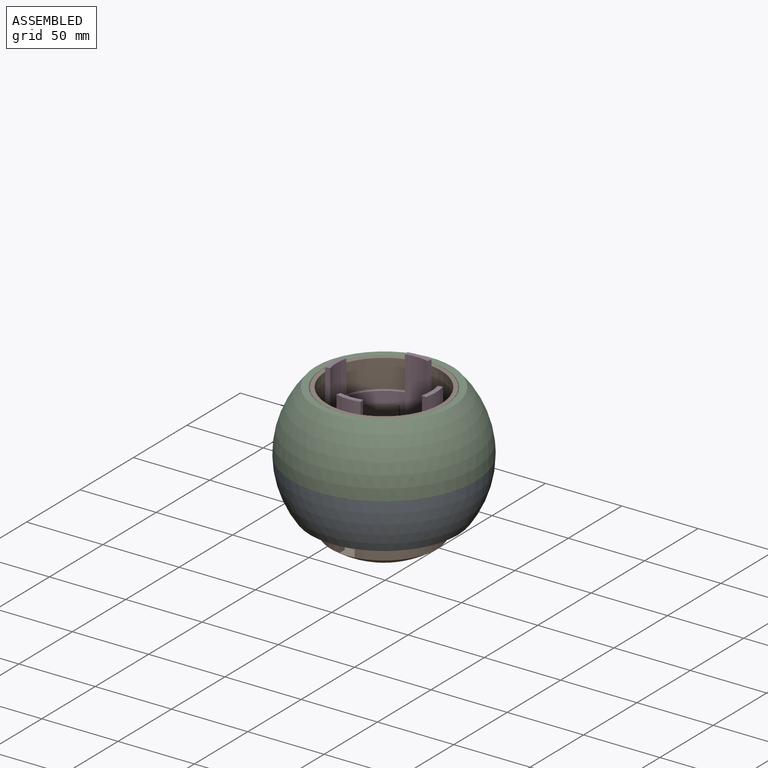
[diagram: assembled view]
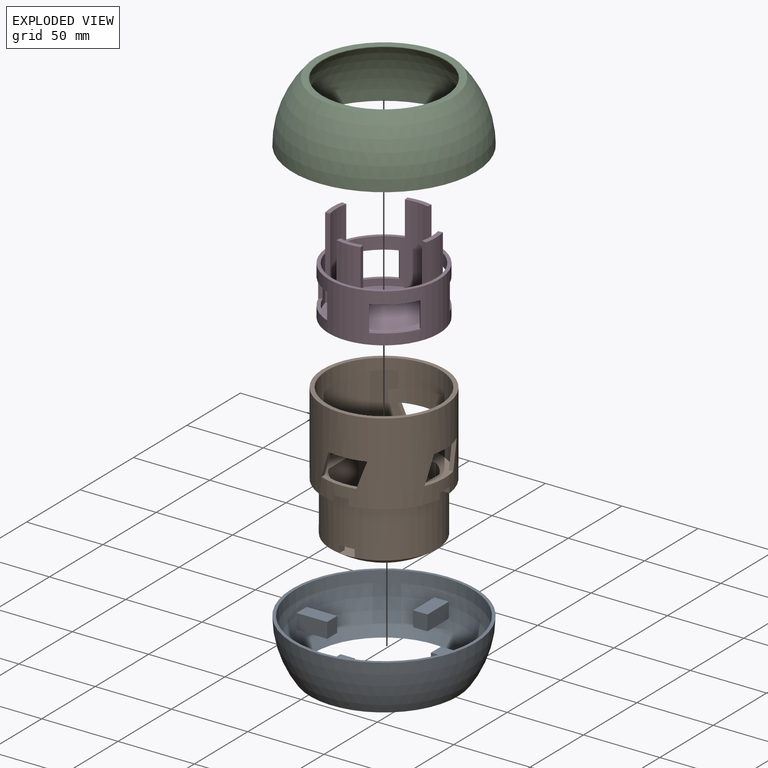
[diagram: exploded view]
GUIDED TOUR — MATED ASSEMBLY (Onshape document e56624c7824e60124f86bd72, AutoMate assembly e56624c7824e60124f86bd72_9de92156aa8731d8bdb36ea4_46a360033ff3293bf95f76d8_default)

This assembly has 4 components, labeled P0..P3 below (a component is one placed occurrence of a part; the same part can appear more than once), held together by 4 mates. A mate is a constraint between two components; its type names the relative motion it leaves free:
  CYLINDRICAL — leaves both rotation about and translation along the listed axis free,
  PARALLEL — keeps the two listed directions parallel,
  REVOLUTE — leaves rotation about the listed axis free (a hinge).
Axis/direction vectors are unit vectors and 'through' points are millimeter coordinates, both in the assembly's world frame.

MATES
  1. CYLINDRICAL "원통형 2": P2 <-> P0, axis (0.000, 0.000, -1.000) through (-66.40, 79.53, 41.15) mm
  2. CYLINDRICAL "원통형 1": P1 <-> P0, axis (0.000, 0.000, 1.000) through (-66.40, 79.53, 12.66) mm
  3. PARALLEL "평행 1": P0 <-> P1, direction (0.000, 0.000, 1.000) through (-66.40, 45.53, 30.05) mm
  4. REVOLUTE "축회전하기 1": P3 <-> P1, axis (0.000, 0.000, -1.000) through (-66.40, 79.53, 30.86) mm

ASSEMBLY ORDER
  1. P1 — the base component [order heuristic]
  2. P0 [order verified]
  3. P3 — core [order heuristic]
  4. P2 — core [order heuristic]
Order-tag legend:
  [order verified] — this step's position reverses a verified removal order: the component was checked to insert without passing through the ones already placed.
  [order heuristic] — the first 3 components form the assembly's core: parts whose collision-free extraction could not be verified, listed in mate-graph order.

Of the 4 components, 1 carries the full construction recipe — the FeatureScript program that regenerates the part's solid from scratch; the rest are supplied as boundary geometry only.
Each toured component is shown spotlighted twice — in the assembled view, then in the exploded view, where a leader line traces a displaced component back to its assembled socket (saturated green if recipe-attached, orange if geometry-only; every other component desaturated gray) — followed by its recipe or geometry summary and the mates that hold it.
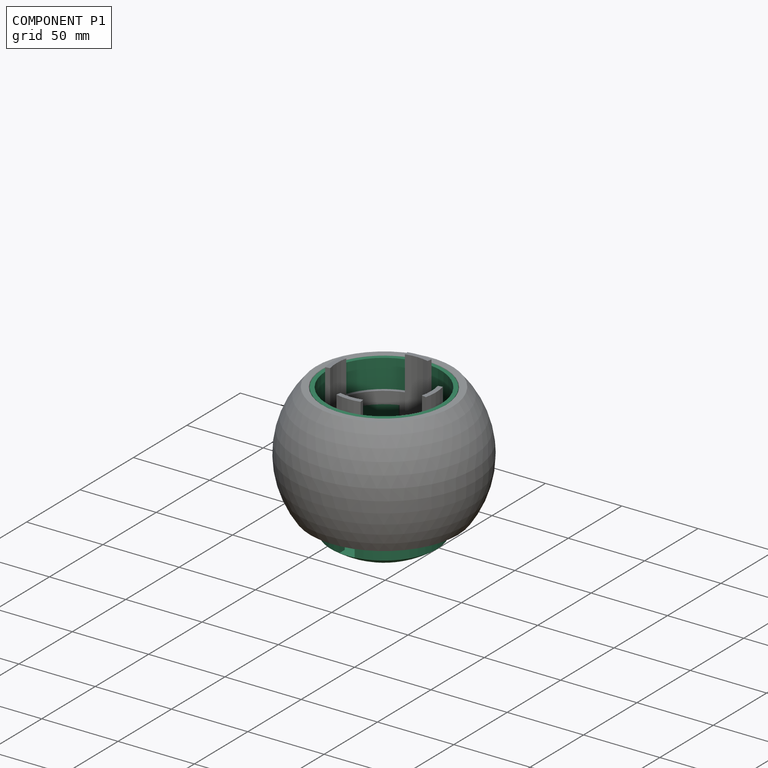
[diagram: component P1 — assembled]
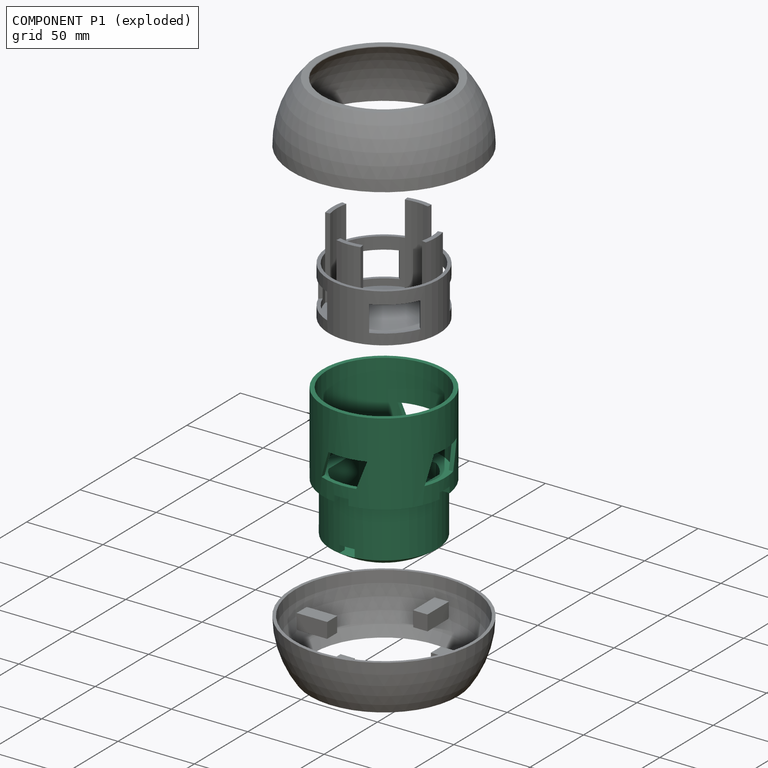
[diagram: component P1 — exploded]
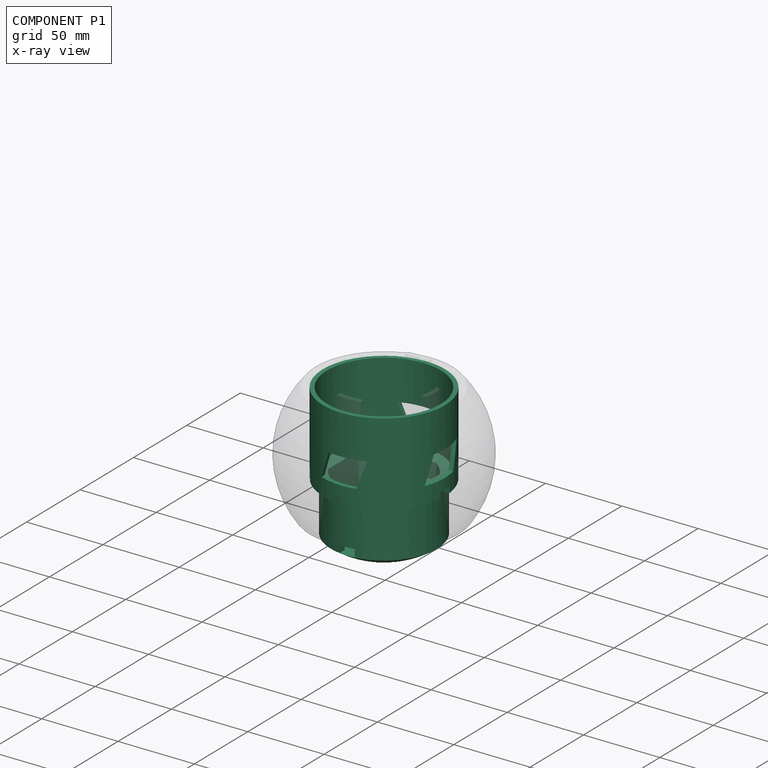
[diagram: component P1 — x-ray view]
COMPONENT P1 — recipe-attached (CADFS 00549652, mesh-verified: the recipe's output STEP matches this component's geometry to below the mesh-comparison resolution (tessellation chordal tolerance ~0.225 mm)).
Held by: CYLINDRICAL mate "원통형 1" to P0; PARALLEL mate "평행 1" to P0; REVOLUTE mate "축회전하기 1" to P3.
Construction recipe (FeatureScript — the CAD program that rebuilds this solid; sketch coordinates are in the units given by the * unit suffixes, e.g. mm):

FeatureScript 1511;
import(path : "onshape/std/geometry.fs", version : "1511.0");
import(path : "onshape/std/common.fs", version : "1511.0");
const mm = millimeter;
const VERTEX = EntityType.VERTEX;
const EDGE = EntityType.EDGE;
const FACE = EntityType.FACE;
const BODY = EntityType.BODY;
function v(x, y){return vector(x, y);}
function OD(order){return orderDisambiguation(order);}
function OSD(set){return originalSetDisambiguation(set);}
function TD(topology){return topologyDisambiguation(topology);}
function TDD(query){return trueDependencyDisambiguation(query);}
function sQuery(a, b, c) {return sketchEntityQuery(a, b, c);}

annotation { "Feature Type Name" : "Feature", "Feature Type Description" : "" }
export const myFeature = defineFeature(function(context is Context, id is Id, definition is map)
    precondition{}
    {
        {
            var Q0;
            Q0=qCreatedBy(makeId("Top.planeOp"),FACE);
            var sketch = newSketch(context, id + "F0", { "sketchPlane" : qUnion([Q0])});
            skCircle(sketch, "E0", {"center": v(0, 0) * mm, "radius": 35 * mm});
            skCircle(sketch, "E1", {"center": v(0, 0) * mm, "radius": 30 * mm});
            skSolve(sketch);
        }
        {
            var Q0;
            Q0=makeQuery(id+"F0.imprint","IMPRINT",FACE,{"disambiguationData":[TD([[makeQuery(id+"F0.imprint","IMPRINT",EDGE,{"derivedFrom":sQuery(id+"F0.wireOp",EDGE,"E0")}),1.0]])]});
            extrude(context, id + "F1", {"entities" : qUnion([Q0]), "oppositeDirection" : true, "depth" : 10 * mm, "offsetDistance" : 25 * mm});
        }
        {
            var Q0;
            Q0=qCreatedBy(makeId("Top.planeOp"),FACE);
            var sketch = newSketch(context, id + "F2", { "sketchPlane" : qUnion([Q0])});
            skLineSegment(sketch, "E2.bottom", {"start": v(4.67, 54) * mm, "end": v(-4.68, 54) * mm});
            skLineSegment(sketch, "E2.top", {"start": v(4.68, 34) * mm, "end": v(-4.67, 34) * mm});
            skLineSegment(sketch, "E2.left", {"start": v(4.68, 54) * mm, "end": v(4.68, 34) * mm});
            skLineSegment(sketch, "E2.right", {"start": v(-4.67, 54) * mm, "end": v(-4.67, 34) * mm});
            skPoint(sketch, "E2.middle", {"position": v(0, 44) * mm});
            skSolve(sketch);
        }
        {
            var Q0;
            Q0=qSketchRegion(id+"F2",true);
            extrude(context, id + "F3", {"entities" : qUnion([Q0]), "operationType" : NewBodyOperationType.ADD, "oppositeDirection" : true, "depth" : 10 * mm, "offsetDistance" : 25 * mm});
        }
        {
            var Q0;
            Q0=qCreatedBy(makeId("Right.planeOp"),FACE);
            var sketch = newSketch(context, id + "F4", { "sketchPlane" : qUnion([Q0])});
            skLineSegment(sketch, "E3", {"start": v(0, 0) * mm, "end": v(0, -40) * mm});
            skSolve(sketch);
        }
        {
            var Q0;
            Q0=makeQuery(id+"F1.opExtrude","CAP_FACE",FACE,{"disambiguationData":[OSD([sQuery(id+"F0.wireOp",EDGE,"E0"),sQuery(id+"F0.wireOp",EDGE,"E1")])],"isStart":false});
            var sketch = newSketch(context, id + "F5", { "sketchPlane" : qUnion([Q0])});
            skCircle(sketch, "E4", {"center": v(0, 0) * mm, "radius": 30 * mm});
            skCircle(sketch, "E5", {"center": v(0, 0) * mm, "radius": 35 * mm});
            skSolve(sketch);
        }
        {
            var Q0;
            Q0=qSketchRegion(id+"F5",true);
            extrude(context, id + "F6", {"entities" : qUnion([Q0]), "depth" : 26.4 * mm, "offsetDistance" : 25 * mm});
        }
        {
            var Q0;
            Q0=qCreatedBy(makeId("Right.planeOp"),FACE);
            var sketch = newSketch(context, id + "F7", { "sketchPlane" : qUnion([Q0])});
            skLineSegment(sketch, "E6", {"start": v(0, 43.23) * mm, "end": v(0, 10.88) * mm});
            skSolve(sketch);
        }
        {
            var Q0;
            Q0=makeQuery(id+"F1.opExtrude","SWEPT_BODY",BODY,{"disambiguationData":[OSD([sQuery(id+"F0.wireOp",EDGE,"E0"),sQuery(id+"F0.wireOp",EDGE,"E1")])]});
            var Q1;
            Q1=sQuery(id+"F7.wireOp",EDGE,"E6");
            circularPattern(context, id + "F8", {"entities" : qUnion([Q0]), "axis" : qUnion([Q1]), "angle" : 360 * degree, "instanceCount" : 4, "equalSpace" : true});
        }
        {
            var Q0;
            Q0=qCreatedBy(makeId("Right.planeOp"),FACE);
            var sketch = newSketch(context, id + "F9", { "sketchPlane" : qUnion([Q0])});
            skLineSegment(sketch, "E7", {"start": v(0, -36.4) * mm, "end": v(0, -48.07) * mm});
            skLineSegment(sketch, "E8", {"start": v(0, -36.4) * mm, "end": v(-35, -36.4) * mm});
            skArc(sketch, "E9", {"start": v(-35, -36.4) * mm, "mid": v(-18.42, -44.99) * mm, "end": v(0, -48.07) * mm});
            skSolve(sketch);
        }
        {
            var Q0;
            Q0=qSketchRegion(id+"F9",true);
            var Q1;
            Q1=sQuery(id+"F7.wireOp",EDGE,"E6");
            revolve(context, id + "F10", {"operationType" : NewBodyOperationType.ADD, "entities" : qUnion([Q0]), "axis" : qUnion([Q1]), "revolveType" : RevolveType.FULL});
        }
        {
            var Q0;
            Q0=qCreatedBy(makeId("Top.planeOp"),FACE);
            var sketch = newSketch(context, id + "F11", { "sketchPlane" : qUnion([Q0])});
            skLineSegment(sketch, "E10.bottom", {"start": v(16.5, 25.05) * mm, "end": v(-16.5, 25.05) * mm});
            skLineSegment(sketch, "E10.top", {"start": v(16.5, 30) * mm, "end": v(-16.5, 30) * mm});
            skLineSegment(sketch, "E10.left", {"start": v(16.5, 25.05) * mm, "end": v(16.5, 30) * mm});
            skLineSegment(sketch, "E10.right", {"start": v(-16.5, 25.05) * mm, "end": v(-16.5, 30) * mm});
            skPoint(sketch, "E10.middle", {"position": v(0, 27.53) * mm});
            skSolve(sketch);
        }
        {
            var Q0;
            Q0=makeQuery(id+"F1.opExtrude","SWEPT_BODY",BODY,{"disambiguationData":[OSD([sQuery(id+"F0.wireOp",EDGE,"E0"),sQuery(id+"F0.wireOp",EDGE,"E1")])]});
            var Q1;
            Q1=makeQuery(id+"F6.opExtrude","SWEPT_BODY",BODY,{"disambiguationData":[OSD([sQuery(id+"F5.wireOp",EDGE,"E4"),sQuery(id+"F5.wireOp",EDGE,"E5")])]});
            var Q2;
            Q2=makeQuery(id+"F8.opPattern","COPY",BODY,{"derivedFrom":makeQuery(id+"F1.opExtrude","SWEPT_BODY",BODY,{"disambiguationData":[OSD([sQuery(id+"F0.wireOp",EDGE,"E0"),sQuery(id+"F0.wireOp",EDGE,"E1")])]}),"instanceName":"2"});
            var Q3;
            Q3=makeQuery(id+"F8.opPattern","COPY",BODY,{"derivedFrom":makeQuery(id+"F1.opExtrude","SWEPT_BODY",BODY,{"disambiguationData":[OSD([sQuery(id+"F0.wireOp",EDGE,"E0"),sQuery(id+"F0.wireOp",EDGE,"E1")])]}),"instanceName":"3"});
            var Q4;
            Q4=makeQuery(id+"F40aK8SqE4txYRV_3.opPattern","COPY",BODY,{"derivedFrom":makeQuery(id+"FKwpcLcn6bH6iQZ_2.opRevolve","SWEPT_BODY",BODY,{"disambiguationData":[OSD([sQuery(id+"FD4HdzIvPUUwVay_2.wireOp",EDGE,"a1goFWV3-hmGV-yWYP-BMxk-jAgMXw5Fhpe8"),sQuery(id+"FD4HdzIvPUUwVay_2.wireOp",EDGE,"Fw7PGfqN-QWwp-sSqB-PI52-uVMqbdzyiW2G"),sQuery(id+"FD4HdzIvPUUwVay_2.wireOp",EDGE,"nihQI9GH-8jKx-viQP-mQeq-4tLKAg00kZ77"),sQuery(id+"FD4HdzIvPUUwVay_2.wireOp",EDGE,"Pyl0iUsN-Orhq-JqrC-4vEJ-9OXzgTH1srMD")])]}),"instanceName":"1"});
            booleanBodies(context, id + "F12", {"operationType" : BooleanOperationType.UNION, "tools" : qUnion([Q0, Q1, Q2, Q3, Q4])});
        }
        {
            var Q0;
            Q0=makeQuery(id+"F1.opExtrude","SWEPT_BODY",BODY,{"disambiguationData":[OSD([sQuery(id+"F0.wireOp",EDGE,"E0"),sQuery(id+"F0.wireOp",EDGE,"E1")])]});
            var Q1;
            Q1=makeQuery(id+"F8.opPattern","COPY",BODY,{"derivedFrom":makeQuery(id+"F1.opExtrude","SWEPT_BODY",BODY,{"disambiguationData":[OSD([sQuery(id+"F0.wireOp",EDGE,"E0"),sQuery(id+"F0.wireOp",EDGE,"E1")])]}),"instanceName":"1"});
            var Q2;
            Q2=makeQuery(id+"FKwpcLcn6bH6iQZ_2.opRevolve","SWEPT_BODY",BODY,{"disambiguationData":[OSD([sQuery(id+"FD4HdzIvPUUwVay_2.wireOp",EDGE,"a1goFWV3-hmGV-yWYP-BMxk-jAgMXw5Fhpe8"),sQuery(id+"FD4HdzIvPUUwVay_2.wireOp",EDGE,"Fw7PGfqN-QWwp-sSqB-PI52-uVMqbdzyiW2G"),sQuery(id+"FD4HdzIvPUUwVay_2.wireOp",EDGE,"nihQI9GH-8jKx-viQP-mQeq-4tLKAg00kZ77"),sQuery(id+"FD4HdzIvPUUwVay_2.wireOp",EDGE,"Pyl0iUsN-Orhq-JqrC-4vEJ-9OXzgTH1srMD")])]});
            var Q3;
            Q3=makeQuery(id+"F40aK8SqE4txYRV_3.opPattern","COPY",BODY,{"derivedFrom":makeQuery(id+"FKwpcLcn6bH6iQZ_2.opRevolve","SWEPT_BODY",BODY,{"disambiguationData":[OSD([sQuery(id+"FD4HdzIvPUUwVay_2.wireOp",EDGE,"a1goFWV3-hmGV-yWYP-BMxk-jAgMXw5Fhpe8"),sQuery(id+"FD4HdzIvPUUwVay_2.wireOp",EDGE,"Fw7PGfqN-QWwp-sSqB-PI52-uVMqbdzyiW2G"),sQuery(id+"FD4HdzIvPUUwVay_2.wireOp",EDGE,"nihQI9GH-8jKx-viQP-mQeq-4tLKAg00kZ77"),sQuery(id+"FD4HdzIvPUUwVay_2.wireOp",EDGE,"Pyl0iUsN-Orhq-JqrC-4vEJ-9OXzgTH1srMD")])]}),"instanceName":"2"});
            var Q4;
            Q4=makeQuery(id+"F40aK8SqE4txYRV_3.opPattern","COPY",BODY,{"derivedFrom":makeQuery(id+"FKwpcLcn6bH6iQZ_2.opRevolve","SWEPT_BODY",BODY,{"disambiguationData":[OSD([sQuery(id+"FD4HdzIvPUUwVay_2.wireOp",EDGE,"a1goFWV3-hmGV-yWYP-BMxk-jAgMXw5Fhpe8"),sQuery(id+"FD4HdzIvPUUwVay_2.wireOp",EDGE,"Fw7PGfqN-QWwp-sSqB-PI52-uVMqbdzyiW2G"),sQuery(id+"FD4HdzIvPUUwVay_2.wireOp",EDGE,"nihQI9GH-8jKx-viQP-mQeq-4tLKAg00kZ77"),sQuery(id+"FD4HdzIvPUUwVay_2.wireOp",EDGE,"Pyl0iUsN-Orhq-JqrC-4vEJ-9OXzgTH1srMD")])]}),"instanceName":"3"});
            var Q5;
            Q5=makeQuery(id+"FgH07LaCN1YdpZV_3.opExtrude","SWEPT_BODY",BODY,{"disambiguationData":[OSD([sQuery(id+"FR34k6RjlDwe5vP_3.wireOp",EDGE,"LmRDcWpp-awj7-NGUQ-v67H-xGxEU0ThPCFp"),sQuery(id+"FR34k6RjlDwe5vP_3.wireOp",EDGE,"yXPaf9AL-SZNH-Mc4A-USQs-dOwJlW72xKXk"),sQuery(id+"FR34k6RjlDwe5vP_3.wireOp",EDGE,"sUruhic9-czyD-tmxL-6hvL-q4A46Xcr3Ddl"),sQuery(id+"FR34k6RjlDwe5vP_3.wireOp",EDGE,"kMsjgBrX-0vqh-hQ1Y-Rj0W-wmr9ZrnzLnDL")])]});
            var Q6;
            Q6=makeQuery(id+"FhvvMPg10EEFssR_4.opPattern","COPY",BODY,{"derivedFrom":makeQuery(id+"FgH07LaCN1YdpZV_3.opExtrude","SWEPT_BODY",BODY,{"disambiguationData":[OSD([sQuery(id+"FR34k6RjlDwe5vP_3.wireOp",EDGE,"LmRDcWpp-awj7-NGUQ-v67H-xGxEU0ThPCFp"),sQuery(id+"FR34k6RjlDwe5vP_3.wireOp",EDGE,"yXPaf9AL-SZNH-Mc4A-USQs-dOwJlW72xKXk"),sQuery(id+"FR34k6RjlDwe5vP_3.wireOp",EDGE,"sUruhic9-czyD-tmxL-6hvL-q4A46Xcr3Ddl"),sQuery(id+"FR34k6RjlDwe5vP_3.wireOp",EDGE,"kMsjgBrX-0vqh-hQ1Y-Rj0W-wmr9ZrnzLnDL")])]}),"instanceName":"1"});
            var Q7;
            Q7=makeQuery(id+"F8pSuF8Lx7vEzgG_4.opExtrude","SWEPT_BODY",BODY,{"disambiguationData":[OSD([sQuery(id+"F11.wireOp",EDGE,"E10.bottom"),sQuery(id+"F11.wireOp",EDGE,"E10.top"),sQuery(id+"F11.wireOp",EDGE,"E10.left"),sQuery(id+"F11.wireOp",EDGE,"E10.right")])]});
            var Q8;
            Q8=makeQuery(id+"FjD0aHrHDqX2kuE_5.opExtrude","SWEPT_BODY",BODY,{"disambiguationData":[OSD([sQuery(id+"FjwMsoveauJ2MpE_5.wireOp",EDGE,"X3daKeJd-6pMJ-jMlG-joWg-jZjprT1OWdNl.bottom"),sQuery(id+"FjwMsoveauJ2MpE_5.wireOp",EDGE,"X3daKeJd-6pMJ-jMlG-joWg-jZjprT1OWdNl.top"),sQuery(id+"FjwMsoveauJ2MpE_5.wireOp",EDGE,"X3daKeJd-6pMJ-jMlG-joWg-jZjprT1OWdNl.left"),sQuery(id+"FjwMsoveauJ2MpE_5.wireOp",EDGE,"X3daKeJd-6pMJ-jMlG-joWg-jZjprT1OWdNl.right")])]});
            var Q9;
            Q9=makeQuery(id+"FjD0aHrHDqX2kuE_5.opExtrude","SWEPT_BODY",BODY,{"disambiguationData":[OSD([sQuery(id+"FjwMsoveauJ2MpE_5.wireOp",EDGE,"aEOO42Y5-tFNn-AOk7-4746-zKCDvE4CHbXH.bottom"),sQuery(id+"FjwMsoveauJ2MpE_5.wireOp",EDGE,"aEOO42Y5-tFNn-AOk7-4746-zKCDvE4CHbXH.top"),sQuery(id+"FjwMsoveauJ2MpE_5.wireOp",EDGE,"aEOO42Y5-tFNn-AOk7-4746-zKCDvE4CHbXH.left"),sQuery(id+"FjwMsoveauJ2MpE_5.wireOp",EDGE,"aEOO42Y5-tFNn-AOk7-4746-zKCDvE4CHbXH.right"),sQuery(id+"FjwMsoveauJ2MpE_5.wireOp",EDGE,"ugEVnK5k-7QH2-G8G2-oESj-ZDwBd6VaRQGP.top"),sQuery(id+"FjwMsoveauJ2MpE_5.wireOp",EDGE,"ugEVnK5k-7QH2-G8G2-oESj-ZDwBd6VaRQGP.left"),sQuery(id+"FjwMsoveauJ2MpE_5.wireOp",EDGE,"ugEVnK5k-7QH2-G8G2-oESj-ZDwBd6VaRQGP.right")])]});
            booleanBodies(context, id + "F13", {"operationType" : BooleanOperationType.UNION, "tools" : qUnion([Q0, Q1, Q2, Q3, Q4, Q5, Q6, Q7, Q8, Q9])});
        }
        {
            var Q0;
            Q0=qSketchRegion(id+"F11",true);
            extrude(context, id + "F14", {"entities" : qUnion([Q0]), "operationType" : NewBodyOperationType.ADD, "oppositeDirection" : true, "depth" : 37 * mm, "offsetDistance" : 25 * mm});
        }
        {
            var Q0;
            Q0=makeQuery(id+"F14.opExtrude","SWEPT_FACE",FACE,{"disambiguationData":[OSD([sQuery(id+"F11.wireOp",EDGE,"E10.bottom")])]});
            var sketch = newSketch(context, id + "F15", { "sketchPlane" : qUnion([Q0])});
            skLineSegment(sketch, "E11.bottom", {"start": v(-16.5, -36.4) * mm, "end": v(16.5, -36.4) * mm});
            skLineSegment(sketch, "E11.top", {"start": v(-16.5, -26.4) * mm, "end": v(16.5, -26.4) * mm});
            skLineSegment(sketch, "E11.left", {"start": v(-16.5, -36.4) * mm, "end": v(-16.5, -26.4) * mm});
            skLineSegment(sketch, "E11.right", {"start": v(16.5, -36.4) * mm, "end": v(16.5, -26.4) * mm});
            skLineSegment(sketch, "E12.bottom", {"start": v(-16.5, -26.4) * mm, "end": v(-11.1, -26.4) * mm});
            skLineSegment(sketch, "E12.top", {"start": v(-16.5, -10.4) * mm, "end": v(-11.1, -10.4) * mm});
            skLineSegment(sketch, "E12.left", {"start": v(-16.5, -26.4) * mm, "end": v(-16.5, -10.4) * mm});
            skLineSegment(sketch, "E12.right", {"start": v(-11.1, -26.4) * mm, "end": v(-11.1, -10.4) * mm});
            skLineSegment(sketch, "E13.bottom", {"start": v(16.5, -10.4) * mm, "end": v(11.1, -10.4) * mm});
            skLineSegment(sketch, "E13.top", {"start": v(16.5, -17.4) * mm, "end": v(11.1, -17.4) * mm});
            skLineSegment(sketch, "E13.left", {"start": v(16.5, -10.4) * mm, "end": v(16.5, -17.4) * mm});
            skLineSegment(sketch, "E13.right", {"start": v(11.1, -10.4) * mm, "end": v(11.1, -17.4) * mm});
            skSolve(sketch);
        }
        {
            var Q0;
            Q0=qSketchRegion(id+"F15",true);
            extrude(context, id + "F16", {"entities" : qUnion([Q0]), "operationType" : NewBodyOperationType.ADD, "depth" : 12 * mm, "offsetDistance" : 25 * mm});
        }
        {
            var Q0;
            {var subQ0=makeQuery(id+"F3.boolean.opBoolean","MERGE",FACE,{"derivedFrom":[makeQuery(id+"F1.opExtrude","CAP_FACE",FACE,{"disambiguationData":[OSD([sQuery(id+"F0.wireOp",EDGE,"E0"),sQuery(id+"F0.wireOp",EDGE,"E1")])],"isStart":true}),makeQuery(id+"F3.opExtrude","CAP_FACE",FACE,{"disambiguationData":[OSD([sQuery(id+"F2.wireOp",EDGE,"E2.bottom"),sQuery(id+"F2.wireOp",EDGE,"E2.top"),sQuery(id+"F2.wireOp",EDGE,"E2.left"),sQuery(id+"F2.wireOp",EDGE,"E2.right")])],"isStart":true})]});Q0=makeQuery(id+"F14.boolean.opBoolean","MERGE",FACE,{"derivedFrom":[makeQuery(id+"F13.opBoolean","MERGE",FACE,{"derivedFrom":[makeQuery(id+"F8.opPattern","COPY",FACE,{"derivedFrom":subQ0,"instanceName":"1"}),makeQuery(id+"F12.opBoolean","MERGE",FACE,{"derivedFrom":[subQ0,makeQuery(id+"F8.opPattern","COPY",FACE,{"derivedFrom":subQ0,"instanceName":"2"}),makeQuery(id+"F8.opPattern","COPY",FACE,{"derivedFrom":subQ0,"instanceName":"3"})]})]}),makeQuery(id+"F14.opExtrude","CAP_FACE",FACE,{"disambiguationData":[OSD([sQuery(id+"F11.wireOp",EDGE,"E10.bottom"),sQuery(id+"F11.wireOp",EDGE,"E10.top"),sQuery(id+"F11.wireOp",EDGE,"E10.left"),sQuery(id+"F11.wireOp",EDGE,"E10.right")])],"isStart":true})]});}
            var sketch = newSketch(context, id + "F17", { "sketchPlane" : qUnion([Q0])});
            skLineSegment(sketch, "E14.bottom", {"start": v(-31.49, 14.23) * mm, "end": v(-26.4, 14.23) * mm});
            skLineSegment(sketch, "E14.top", {"start": v(-31.49, -14.23) * mm, "end": v(-26.4, -14.23) * mm});
            skLineSegment(sketch, "E14.left", {"start": v(-31.49, 14.23) * mm, "end": v(-31.49, -14.23) * mm});
            skLineSegment(sketch, "E14.right", {"start": v(-26.4, 14.23) * mm, "end": v(-26.4, -14.23) * mm});
            skLineSegment(sketch, "E15", {"start": v(0, 0) * mm, "end": v(0, -11.57) * mm, "construction": true});
            skLineSegment(sketch, "E16.MirrorCS", {"start": v(26.4, 14.23) * mm, "end": v(26.4, -14.23) * mm});
            skLineSegment(sketch, "E17.MirrorCS", {"start": v(31.49, 14.23) * mm, "end": v(31.49, -14.23) * mm});
            skLineSegment(sketch, "E18.MirrorCS", {"start": v(31.49, 14.23) * mm, "end": v(26.4, 14.23) * mm});
            skLineSegment(sketch, "E19.MirrorCS", {"start": v(31.49, -14.23) * mm, "end": v(26.4, -14.23) * mm});
            skSolve(sketch);
        }
        {
            var Q0;
            Q0=qSketchRegion(id+"F17",true);
            extrude(context, id + "F18", {"entities" : qUnion([Q0]), "operationType" : NewBodyOperationType.ADD, "oppositeDirection" : true, "depth" : 36 * mm, "offsetDistance" : 25 * mm});
        }
        {
            var Q0;
            Q0=makeQuery(id+"F16.opExtrude","CAP_FACE",FACE,{"disambiguationData":[OSD([sQuery(id+"F15.wireOp",EDGE,"E11.bottom"),sQuery(id+"F15.wireOp",EDGE,"E11.top"),sQuery(id+"F15.wireOp",EDGE,"E11.left"),sQuery(id+"F15.wireOp",EDGE,"E11.right"),sQuery(id+"F15.wireOp",EDGE,"E12.top"),sQuery(id+"F15.wireOp",EDGE,"E12.left"),sQuery(id+"F15.wireOp",EDGE,"E12.right")])],"isStart":false});
            var sketch = newSketch(context, id + "F19", { "sketchPlane" : qUnion([Q0])});
            skLineSegment(sketch, "E20.bottom", {"start": v(5, -36.4) * mm, "end": v(-5, -36.4) * mm});
            skLineSegment(sketch, "E20.top", {"start": v(5, -31.4) * mm, "end": v(-5, -31.4) * mm});
            skLineSegment(sketch, "E20.left", {"start": v(5, -36.4) * mm, "end": v(5, -31.4) * mm});
            skLineSegment(sketch, "E20.right", {"start": v(-5, -36.4) * mm, "end": v(-5, -31.4) * mm});
            skPoint(sketch, "E20.middle", {"position": v(0, -33.9) * mm});
            skSolve(sketch);
        }
        {
            var Q0;
            Q0=qSketchRegion(id+"F19",true);
            extrude(context, id + "F20", {"entities" : qUnion([Q0]), "operationType" : NewBodyOperationType.REMOVE, "depth" : 54.2 * mm, "offsetDistance" : 25 * mm});
        }
        {
            var Q0;
            {var subQ0=makeQuery(id+"F3.boolean.opBoolean","MERGE",FACE,{"derivedFrom":[makeQuery(id+"F1.opExtrude","CAP_FACE",FACE,{"disambiguationData":[OSD([sQuery(id+"F0.wireOp",EDGE,"E0"),sQuery(id+"F0.wireOp",EDGE,"E1")])],"isStart":true}),makeQuery(id+"F3.opExtrude","CAP_FACE",FACE,{"disambiguationData":[OSD([sQuery(id+"F2.wireOp",EDGE,"E2.bottom"),sQuery(id+"F2.wireOp",EDGE,"E2.top"),sQuery(id+"F2.wireOp",EDGE,"E2.left"),sQuery(id+"F2.wireOp",EDGE,"E2.right")])],"isStart":true})]});Q0=makeQuery(id+"F18.boolean.opBoolean","MERGE",FACE,{"derivedFrom":[makeQuery(id+"F14.boolean.opBoolean","MERGE",FACE,{"derivedFrom":[makeQuery(id+"F13.opBoolean","MERGE",FACE,{"derivedFrom":[makeQuery(id+"F8.opPattern","COPY",FACE,{"derivedFrom":subQ0,"instanceName":"1"}),makeQuery(id+"F12.opBoolean","MERGE",FACE,{"derivedFrom":[subQ0,makeQuery(id+"F8.opPattern","COPY",FACE,{"derivedFrom":subQ0,"instanceName":"2"}),makeQuery(id+"F8.opPattern","COPY",FACE,{"derivedFrom":subQ0,"instanceName":"3"})]})]}),makeQuery(id+"F14.opExtrude","CAP_FACE",FACE,{"disambiguationData":[OSD([sQuery(id+"F11.wireOp",EDGE,"E10.bottom"),sQuery(id+"F11.wireOp",EDGE,"E10.top"),sQuery(id+"F11.wireOp",EDGE,"E10.left"),sQuery(id+"F11.wireOp",EDGE,"E10.right")])],"isStart":true})]}),makeQuery(id+"F18.opExtrude","CAP_FACE",FACE,{"disambiguationData":[OSD([sQuery(id+"F17.wireOp",EDGE,"E14.bottom"),sQuery(id+"F17.wireOp",EDGE,"E14.top"),sQuery(id+"F17.wireOp",EDGE,"E14.left"),sQuery(id+"F17.wireOp",EDGE,"E14.right")])],"isStart":true}),makeQuery(id+"F18.opExtrude","CAP_FACE",FACE,{"disambiguationData":[OSD([sQuery(id+"F17.wireOp",EDGE,"E16.MirrorCS"),sQuery(id+"F17.wireOp",EDGE,"E17.MirrorCS"),sQuery(id+"F17.wireOp",EDGE,"E18.MirrorCS"),sQuery(id+"F17.wireOp",EDGE,"E19.MirrorCS")])],"isStart":true})]});}
            var sketch = newSketch(context, id + "F21", { "sketchPlane" : qUnion([Q0])});
            skCircle(sketch, "E21", {"center": v(0, 0) * mm, "radius": 40 * mm});
            skCircle(sketch, "E22", {"center": v(0, 0) * mm, "radius": 37.25 * mm});
            skSolve(sketch);
        }
        {
            var Q0;
            Q0=qSketchRegion(id+"F21",true);
            extrude(context, id + "F22", {"entities" : qUnion([Q0]), "operationType" : NewBodyOperationType.ADD, "depth" : 50 * mm, "offsetDistance" : 25 * mm});
        }
        {
            var Q0;
            {var subQ0=sQuery(id+"F0.wireOp",EDGE,"E0");var subQ1=makeQuery(id+"F1.opExtrude","SWEPT_FACE",FACE,{"disambiguationData":[OSD([subQ0])]});var subQ2=sQuery(id+"F0.wireOp",EDGE,"E1");var subQ4=sQuery(id+"F2.wireOp",EDGE,"E2.right");var subQ6=sQuery(id+"F2.wireOp",EDGE,"E2.left");var subQ10=sQuery(id+"F11.wireOp",EDGE,"E10.bottom");var subQ11=sQuery(id+"F17.wireOp",EDGE,"E14.right");var subQ12=sQuery(id+"F17.wireOp",EDGE,"E16.MirrorCS");var subQ14=makeQuery(id+"F3.boolean.opBoolean","MERGE",FACE,{"derivedFrom":[makeQuery(id+"F1.opExtrude","CAP_FACE",FACE,{"disambiguationData":[OSD([subQ0,subQ2])],"isStart":true}),makeQuery(id+"F3.opExtrude","CAP_FACE",FACE,{"disambiguationData":[OSD([sQuery(id+"F2.wireOp",EDGE,"E2.bottom"),sQuery(id+"F2.wireOp",EDGE,"E2.top"),subQ6,subQ4])],"isStart":true})]});Q0=makeQuery(id+"F22.boolean.opBoolean","SPLIT",FACE,{"disambiguationData":[TD([subQ1])],"derivedFrom":makeQuery(id+"F18.boolean.opBoolean","MERGE",FACE,{"derivedFrom":[makeQuery(id+"F14.boolean.opBoolean","MERGE",FACE,{"derivedFrom":[makeQuery(id+"F13.opBoolean","MERGE",FACE,{"derivedFrom":[makeQuery(id+"F8.opPattern","COPY",FACE,{"derivedFrom":subQ14,"instanceName":"1"}),makeQuery(id+"F12.opBoolean","MERGE",FACE,{"derivedFrom":[subQ14,makeQuery(id+"F8.opPattern","COPY",FACE,{"derivedFrom":subQ14,"instanceName":"2"}),makeQuery(id+"F8.opPattern","COPY",FACE,{"derivedFrom":subQ14,"instanceName":"3"})]})]}),makeQuery(id+"F14.opExtrude","CAP_FACE",FACE,{"disambiguationData":[OSD([subQ10,sQuery(id+"F11.wireOp",EDGE,"E10.top"),sQuery(id+"F11.wireOp",EDGE,"E10.left"),sQuery(id+"F11.wireOp",EDGE,"E10.right")])],"isStart":true})]}),makeQuery(id+"F18.opExtrude","CAP_FACE",FACE,{"disambiguationData":[OSD([sQuery(id+"F17.wireOp",EDGE,"E14.bottom"),sQuery(id+"F17.wireOp",EDGE,"E14.top"),sQuery(id+"F17.wireOp",EDGE,"E14.left"),subQ11])],"isStart":true}),makeQuery(id+"F18.opExtrude","CAP_FACE",FACE,{"disambiguationData":[OSD([subQ12,sQuery(id+"F17.wireOp",EDGE,"E17.MirrorCS"),sQuery(id+"F17.wireOp",EDGE,"E18.MirrorCS"),sQuery(id+"F17.wireOp",EDGE,"E19.MirrorCS")])],"isStart":true})]})});}
            var sketch = newSketch(context, id + "F23", { "sketchPlane" : qUnion([Q0])});
            skCircle(sketch, "E23", {"center": v(0, 0) * mm, "radius": 40 * mm});
            skCircle(sketch, "E24", {"center": v(0, 0) * mm, "radius": 34.39 * mm});
            skSolve(sketch);
        }
        {
            var Q0;
            Q0=qSketchRegion(id+"F23",true);
            extrude(context, id + "F24", {"entities" : qUnion([Q0]), "operationType" : NewBodyOperationType.ADD, "oppositeDirection" : true, "depth" : 4 * mm, "offsetDistance" : 25 * mm});
        }
        {
            var Q0;
            Q0=qCreatedBy(makeId("Front.planeOp"),FACE);
            cPlane(context, id + "F25", {"entities" : qUnion([Q0]), "cplaneType" : CPlaneType.OFFSET, "offset" : 44 * mm, "width" : 150 * mm, "height" : 150 * mm});
        }
        {
            var Q0;
            Q0=qCreatedBy(makeId("Front.planeOp"),FACE);
            cPlane(context, id + "F26", {"entities" : qUnion([Q0]), "cplaneType" : CPlaneType.OFFSET, "offset" : 44 * mm, "oppositeDirection" : true, "width" : 150 * mm, "height" : 150 * mm});
        }
        {
            var Q0;
            Q0=qCreatedBy(makeId("Right.planeOp"),FACE);
            cPlane(context, id + "F27", {"entities" : qUnion([Q0]), "cplaneType" : CPlaneType.OFFSET, "offset" : 44 * mm, "width" : 150 * mm, "height" : 150 * mm});
        }
        {
            var Q0;
            Q0=qCreatedBy(makeId("Right.planeOp"),FACE);
            cPlane(context, id + "F28", {"entities" : qUnion([Q0]), "cplaneType" : CPlaneType.OFFSET, "offset" : 44 * mm, "oppositeDirection" : true, "width" : 150 * mm, "height" : 150 * mm});
        }
        {
            var Q0;
            Q0=qCreatedBy(id+"F25.planeOp",FACE);
            var sketch = newSketch(context, id + "F29", { "sketchPlane" : qUnion([Q0])});
            skLineSegment(sketch, "E25.bottom", {"start": v(15, 24) * mm, "end": v(-9.08, 24) * mm});
            skLineSegment(sketch, "E25.top", {"start": v(9.08, 7) * mm, "end": v(-15, 7) * mm});
            skPoint(sketch, "E25.middle", {"position": v(0, 15.5) * mm});
            skLineSegment(sketch, "E26", {"start": v(-15, 7) * mm, "end": v(-9.08, 24) * mm});
            skLineSegment(sketch, "E27", {"start": v(15, 24) * mm, "end": v(9.08, 7) * mm});
            skPoint(sketch, "E28.orphan", {"position": v(-15, 24) * mm});
            skPoint(sketch, "E29.orphan", {"position": v(15, 7) * mm});
            skSolve(sketch);
        }
        {
            var Q0;
            Q0=qSketchRegion(id+"F29",true);
            extrude(context, id + "F30", {"entities" : qUnion([Q0]), "operationType" : NewBodyOperationType.REMOVE, "oppositeDirection" : true, "depth" : 20.7 * mm, "offsetDistance" : 25 * mm});
        }
        {
            var Q0;
            Q0=qCreatedBy(id+"F26.planeOp",FACE);
            var sketch = newSketch(context, id + "F31", { "sketchPlane" : qUnion([Q0])});
            skLineSegment(sketch, "E30.bottom", {"start": v(-15, 24) * mm, "end": v(9.08, 24) * mm});
            skLineSegment(sketch, "E30.top", {"start": v(-9.08, 7) * mm, "end": v(15, 7) * mm});
            skPoint(sketch, "E30.middle", {"position": v(0, 15.5) * mm});
            skLineSegment(sketch, "E31", {"start": v(15, 7) * mm, "end": v(9.08, 24) * mm});
            skLineSegment(sketch, "E32", {"start": v(-15, 24) * mm, "end": v(-9.08, 7) * mm});
            skPoint(sketch, "E30.right.start.orphan", {"position": v(15, 24) * mm});
            skPoint(sketch, "E33.orphan", {"position": v(-15, 7) * mm});
            skSolve(sketch);
        }
        {
            var Q0;
            Q0=qSketchRegion(id+"F31",true);
            extrude(context, id + "F32", {"entities" : qUnion([Q0]), "operationType" : NewBodyOperationType.REMOVE, "depth" : 25 * mm, "offsetDistance" : 25 * mm});
        }
        {
            var Q0;
            Q0=qCreatedBy(id+"F27.planeOp",FACE);
            var sketch = newSketch(context, id + "F33", { "sketchPlane" : qUnion([Q0])});
            skLineSegment(sketch, "E34.bottom", {"start": v(15, 24) * mm, "end": v(-9.08, 24) * mm});
            skLineSegment(sketch, "E34.top", {"start": v(9.08, 7) * mm, "end": v(-15, 7) * mm});
            skPoint(sketch, "E34.middle", {"position": v(0, 15.5) * mm});
            skLineSegment(sketch, "E35", {"start": v(-15, 7) * mm, "end": v(-9.08, 24) * mm});
            skLineSegment(sketch, "E36", {"start": v(15, 24) * mm, "end": v(9.08, 7) * mm});
            skPoint(sketch, "E34.right.start.orphan", {"position": v(-15, 24) * mm});
            skPoint(sketch, "E34.left.end.orphan", {"position": v(15, 7) * mm});
            skSolve(sketch);
        }
        {
            var Q0;
            Q0=qSketchRegion(id+"F33",true);
            extrude(context, id + "F34", {"entities" : qUnion([Q0]), "operationType" : NewBodyOperationType.REMOVE, "oppositeDirection" : true, "depth" : 25 * mm, "offsetDistance" : 25 * mm});
        }
        {
            var Q0;
            Q0=qCreatedBy(id+"F28.planeOp",FACE);
            var sketch = newSketch(context, id + "F35", { "sketchPlane" : qUnion([Q0])});
            skLineSegment(sketch, "E37.bottom", {"start": v(-15, 24) * mm, "end": v(9.08, 24) * mm});
            skLineSegment(sketch, "E37.top", {"start": v(-9.08, 7) * mm, "end": v(15, 7) * mm});
            skPoint(sketch, "E37.middle", {"position": v(0, 15.5) * mm});
            skLineSegment(sketch, "E38", {"start": v(15, 7) * mm, "end": v(9.08, 24) * mm});
            skLineSegment(sketch, "E39", {"start": v(-15, 24) * mm, "end": v(-9.08, 7) * mm});
            skPoint(sketch, "E37.right.start.orphan", {"position": v(15, 24) * mm});
            skPoint(sketch, "E37.left.end.orphan", {"position": v(-15, 7) * mm});
            skSolve(sketch);
        }
        {
            var Q0;
            Q0=qSketchRegion(id+"F35",true);
            extrude(context, id + "F36", {"entities" : qUnion([Q0]), "operationType" : NewBodyOperationType.REMOVE, "depth" : 25 * mm, "offsetDistance" : 25 * mm});
        }
        {
            var Q0;
            Q0=makeQuery(id+"F3.boolean.opBoolean","MERGE",FACE,{"derivedFrom":[makeQuery(id+"F1.opExtrude","CAP_FACE",FACE,{"disambiguationData":[OSD([sQuery(id+"F0.wireOp",EDGE,"E0"),sQuery(id+"F0.wireOp",EDGE,"E1")])],"isStart":false}),makeQuery(id+"F3.opExtrude","CAP_FACE",FACE,{"disambiguationData":[OSD([sQuery(id+"F2.wireOp",EDGE,"E2.bottom"),sQuery(id+"F2.wireOp",EDGE,"E2.top"),sQuery(id+"F2.wireOp",EDGE,"E2.left"),sQuery(id+"F2.wireOp",EDGE,"E2.right")])],"isStart":false})]});
            var sketch = newSketch(context, id + "F37", { "sketchPlane" : qUnion([Q0])});
            skArc(sketch, "E40", {"start": v(-4.68, -34.69) * mm, "mid": v(0, -35) * mm, "end": v(4.68, -34.69) * mm});
            skLineSegment(sketch, "E41", {"start": v(-4.67, -34.69) * mm, "end": v(-4.68, -54) * mm});
            skLineSegment(sketch, "E42", {"start": v(-4.68, -54) * mm, "end": v(4.67, -54) * mm});
            skLineSegment(sketch, "E43", {"start": v(4.68, -54) * mm, "end": v(4.68, -34.69) * mm});
            skLineSegment(sketch, "E44.1.0", {"start": v(54, 4.67) * mm, "end": v(34.69, 4.68) * mm});
            skLineSegment(sketch, "E44.1.1", {"start": v(34.69, -4.68) * mm, "end": v(54, -4.68) * mm});
            skArc(sketch, "E44.1.2", {"start": v(34.69, -4.68) * mm, "mid": v(35, 0) * mm, "end": v(34.69, 4.68) * mm});
            skLineSegment(sketch, "E44.1.3", {"start": v(54, -4.68) * mm, "end": v(54, 4.67) * mm});
            skLineSegment(sketch, "E44.2.0", {"start": v(-4.67, 54) * mm, "end": v(-4.68, 34.69) * mm});
            skLineSegment(sketch, "E44.2.1", {"start": v(4.68, 34.69) * mm, "end": v(4.68, 54) * mm});
            skArc(sketch, "E44.2.2", {"start": v(4.68, 34.69) * mm, "mid": v(0, 35) * mm, "end": v(-4.68, 34.69) * mm});
            skLineSegment(sketch, "E44.2.3", {"start": v(4.68, 54) * mm, "end": v(-4.67, 54) * mm});
            skLineSegment(sketch, "E44.3.0", {"start": v(-54, -4.67) * mm, "end": v(-34.69, -4.67) * mm});
            skLineSegment(sketch, "E44.3.1", {"start": v(-34.69, 4.68) * mm, "end": v(-54, 4.68) * mm});
            skArc(sketch, "E44.3.2", {"start": v(-34.69, 4.68) * mm, "mid": v(-35, 0) * mm, "end": v(-34.69, -4.68) * mm});
            skLineSegment(sketch, "E44.3.3", {"start": v(-54, 4.68) * mm, "end": v(-54, -4.67) * mm});
            skSolve(sketch);
        }
        {
            var Q0;
            Q0 = qSketchRegion(id + "F37", true);
            extrude(context, id + "F38", {"entities" : qUnion([Q0]), "operationType" : NewBodyOperationType.REMOVE, "oppositeDirection" : true, "depth" : 10 * mm, "offsetDistance" : 25 * mm});
        }
    });
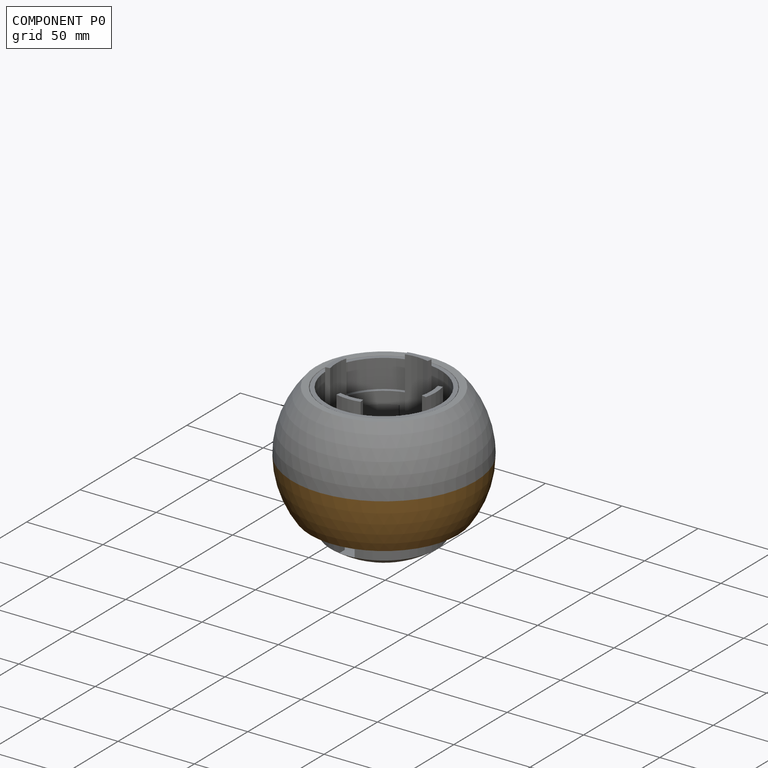
[diagram: component P0 — assembled]
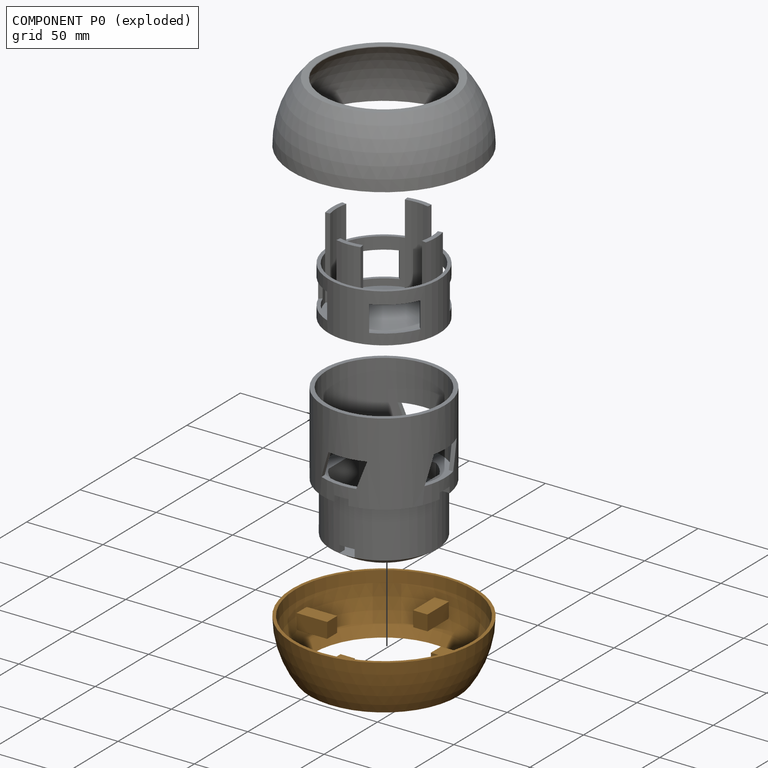
[diagram: component P0 — exploded]
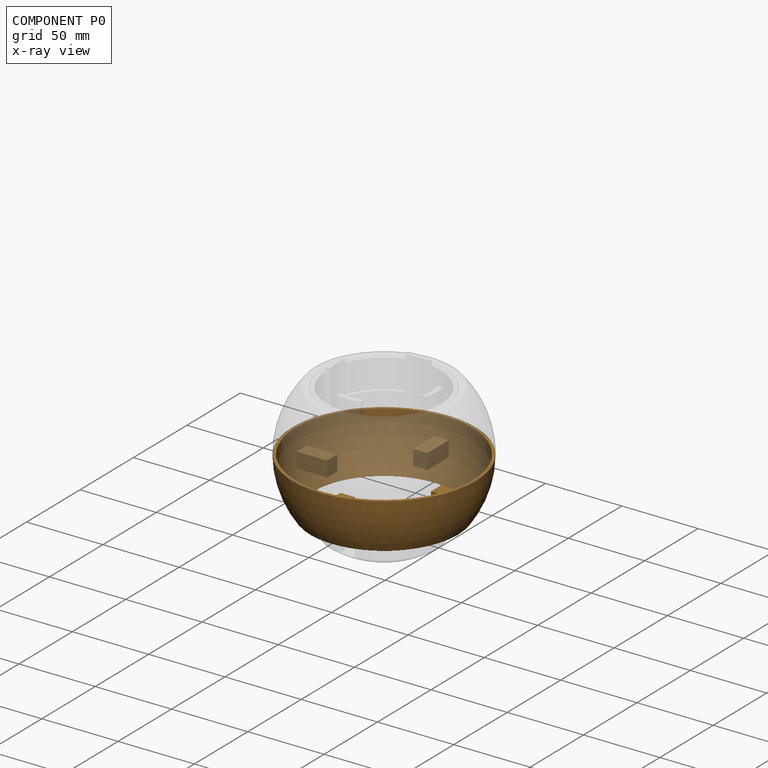
[diagram: component P0 — x-ray view]
COMPONENT P0 — geometry summary (no construction recipe available for this part):
  bounding box: 120.0 x 120.0 x 34.8 mm
  B-rep topology: 1 solid, 28 faces, 142 edges
  volume: 33190 mm^3 (7% of its bounding box)
  symmetry: 4-fold rotationally symmetric about the z axis; mirror-symmetric across its x mid-plane, y mid-plane
Held by: CYLINDRICAL mate "원통형 2" to P2; CYLINDRICAL mate "원통형 1" to P1; PARALLEL mate "평행 1" to P1.
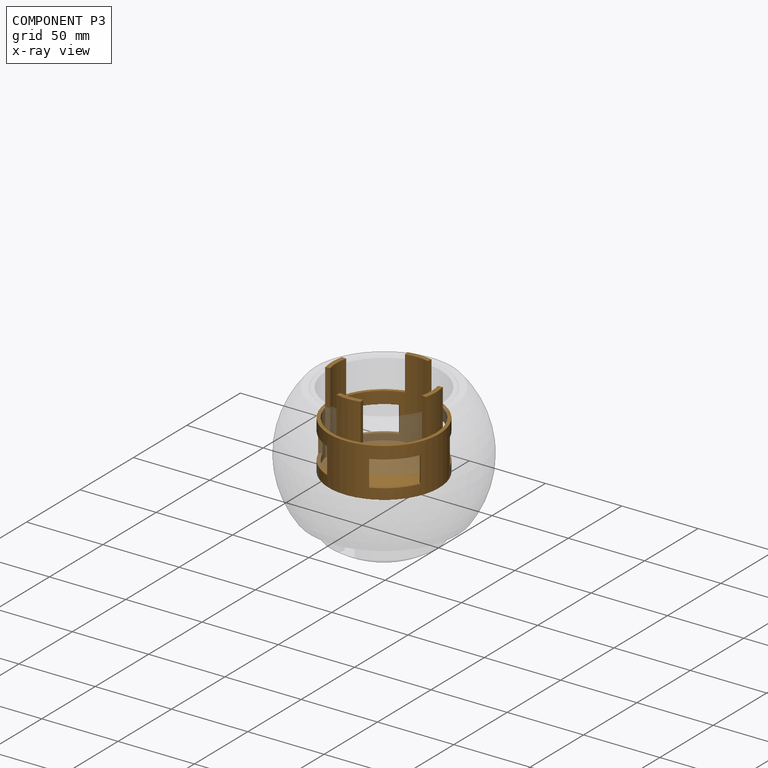
[diagram: component P3 — x-ray view]
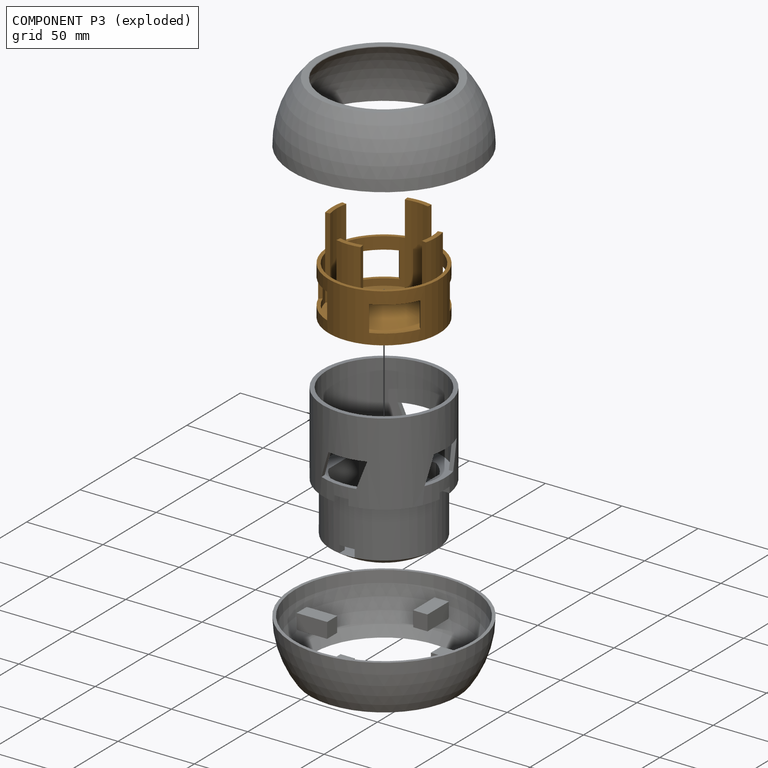
[diagram: component P3 — exploded]
COMPONENT P3 — geometry summary (no construction recipe available for this part):
  bounding box: 72.5 x 72.5 x 56.0 mm
  B-rep topology: 1 solid, 46 faces, 249 edges
  volume: 36134 mm^3 (12% of its bounding box)
  symmetry: 4-fold rotationally symmetric about the z axis; mirror-symmetric across its x mid-plane, y mid-plane
Held by: REVOLUTE mate "축회전하기 1" to P1.
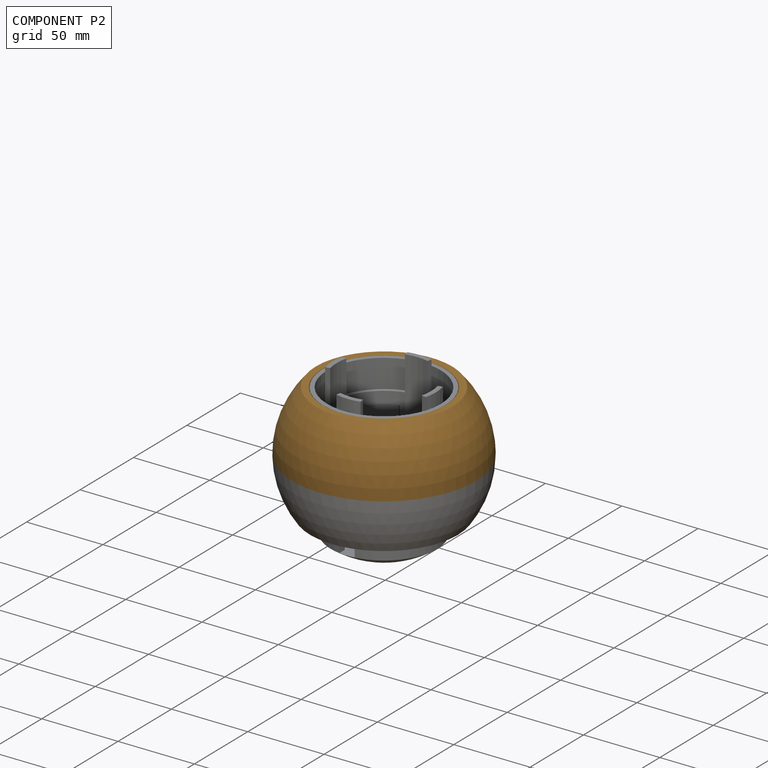
[diagram: component P2 — assembled]
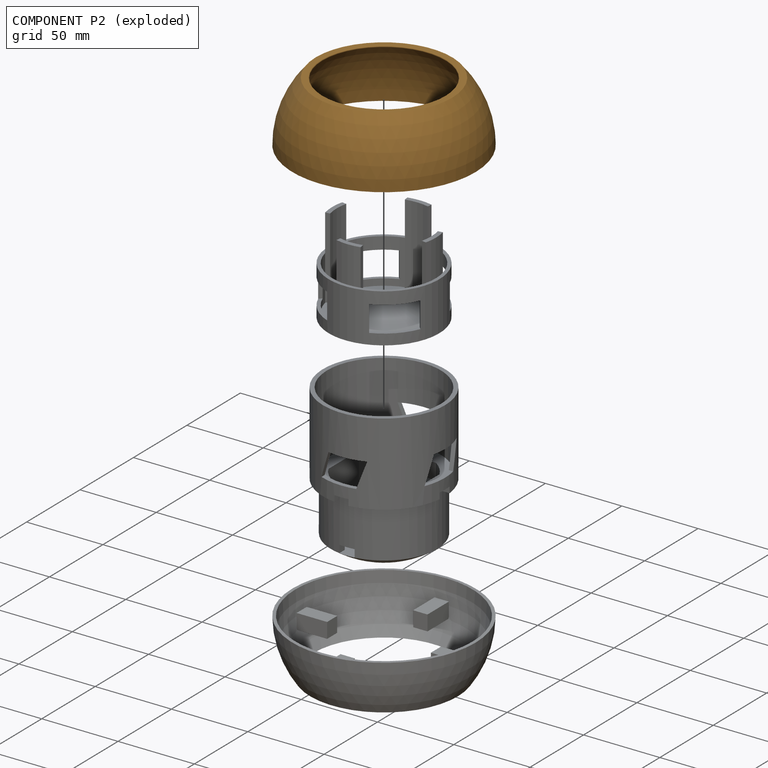
[diagram: component P2 — exploded]
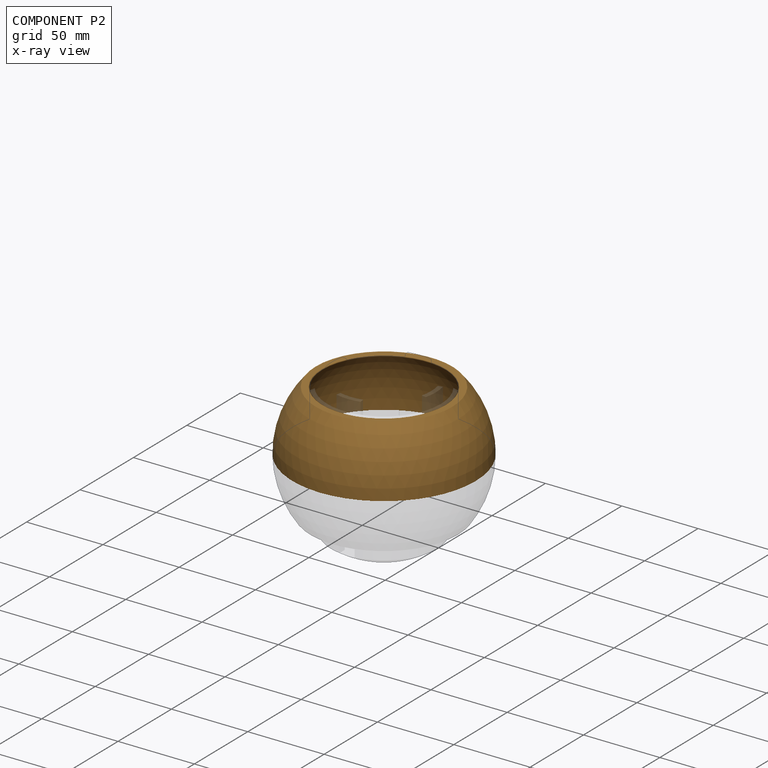
[diagram: component P2 — x-ray view]
COMPONENT P2 — geometry summary (no construction recipe available for this part):
  bounding box: 120.0 x 120.0 x 40.0 mm
  B-rep topology: 1 solid, 29 faces, 138 edges
  volume: 55731 mm^3 (10% of its bounding box)
  symmetry: 4-fold rotationally symmetric about the z axis
Held by: CYLINDRICAL mate "원통형 2" to P0.
PROVENANCE & LICENSES
Assembly (occurrences, transforms, mates, per-part STEP geometry): AutoMate dataset, Zenodo record 7776208, CC0.
Construction recipes: CADFS (HuggingFace VladPyatov/CADFS, CC-BY-4.0, layered over the ABC dataset), FeatureScript reconstruction programs keyed by ABC model id.
Join: ABC meta listings map ABC model id -> Onshape documentId; within a shared document, parts are matched by geometric signature (bounding-box dims + volume at 0.1% relative tolerance, exact B-rep face/solid counts).
Verification: 1 of this assembly's 4 components carries a recipe attachment, and every attachment is mesh-verified: the CADFS STEP and the AutoMate member STEP were compared as meshes in their shared local frame (symmetric sampled-point-to-mesh distance); worst across the 1 attachment: below the mesh-comparison resolution (tessellation chordal tolerance ~0.225 mm) on a 150 mm part.
Renders: orthographic iso camera (az 35 / el 25); the floor grid conveys scale (grid pitch printed in each image; no ruler). In the exploded view each component is displaced by its stored offset vector: the offsets alone carry the explosion direction (mate normal/axis signs are not orientation cues and do not encode it), and separation distances are assigned per mate-chain, not proportionally to assembly-order depth.
